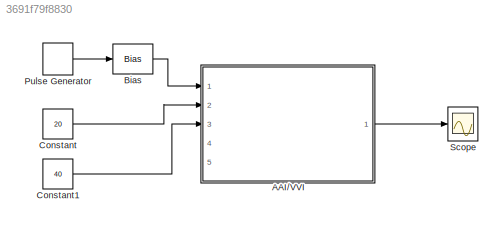
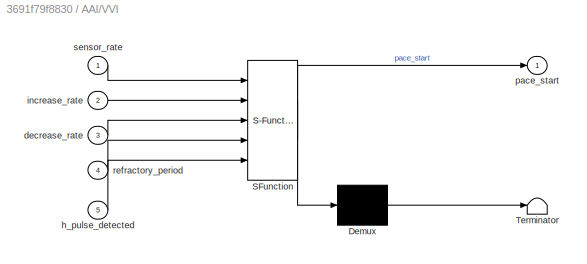
MODEL slx_3691f79f8830
KIND model
CONFIG AbsTol = auto
CONFIG EnableMultiTasking = on
CONFIG FixedStep = 1e-3
CONFIG MaxStep = auto
CONFIG MinStep = auto
CONFIG RelTol = 1e-3
CONFIG SampleTimeConstraint = Unconstrained
CONFIG Solver = FixedStepAuto
CONFIG SolverName = FixedStepAuto
CONFIG StartTime = 0.0
CONFIG StopTime = 16
BLOCK [SubSystem] AAI//VVI
  ErrorFcn = Stateflow.Translate.translate
  PermitHierarchicalResolution = ExplicitOnly
  Ports = [5, 1]
  RequestExecContextInheritance = off
  SFBlockType = Chart
  TreatAsAtomicUnit = on
BLOCK [Demux] AAI//VVI/ Demux 
  Outputs = 1
  Ports = [1, 1]
BLOCK [S-Function] AAI//VVI/ SFunction 
  EnableBusSupport = on
  FunctionName = sf_sfun
  PortCounts = [5 2]
  Ports = [5, 2]
  SFcnIsStateOwnerBlock = off
  SFunctionDeploymentMode = off
  Tag = Stateflow S-Function 3
BLOCK [Terminator] AAI//VVI/ Terminator 
BLOCK [Inport] AAI//VVI/decrease_rate
  Port = 3
BLOCK [Inport] AAI//VVI/h_pulse_detected
  Port = 5
BLOCK [Inport] AAI//VVI/increase_rate
  Port = 2
BLOCK [Outport] AAI//VVI/pace_start
BLOCK [Inport] AAI//VVI/refractory_period
  Port = 4
BLOCK [Inport] AAI//VVI/sensor_rate
BLOCK [Bias] Bias
  Bias = 60
  SaturateOnIntegerOverflow = off
BLOCK [Constant] Constant
  Value = 20
BLOCK [Constant] Constant1
  Value = 40
BLOCK [DiscretePulseGenerator] Pulse Generator
  Amplitude = 60
  Period = 16
  Ports = [0, 1]
  PulseType = Time based
  PulseWidth = 50
BLOCK [Scope] Scope
  Floating = off
  NumInputPorts = 1
  Ports = [1]
  ScopeSpecificationString = Simulink.scopes.TimeScopeBlockCfg('CurrentConfiguration', extmgr.ConfigurationSet(extmgr.Configuration('Core','General UI',true),extmgr.Configuration('Core','Source UI',true),extmgr.Configuration('Sources','WiredSimulink',true),extmgr.Configuration('Visuals','Time Domain',true,'SerializedDisplays',{struct('MinYLimReal','-0.125','MaxYLimReal','1.125','YLabelReal','','MinYLimMag','0.00000','MaxYLimM...<+1343ch>
LINE AAI//VVI:1 -> Scope:1
LINE Bias:1 -> AAI//VVI:1
LINE Constant1:1 -> AAI//VVI:3
LINE Constant:1 -> AAI//VVI:2
LINE Pulse Generator:1 -> Bias:1
CHART AAI//VVI states=4 transitions=20
  STATE_LABEL 'INITIAL\nentry:\ncurrent_LRL = sensor_rate;\nexit:\nt = elapsed(sec);'
  STATE_LABEL 'SENSE\nexit:\nt = t + elapsed(sec);'
  STATE_LABEL 'WAIT\nexit:\nt = elapsed(sec)'
  STATE_LABEL 'PACE\nentry:\npace_start = true;\non after(1, msec):\npace_start = false;\nexit:\nt = t + elapsed(sec);'
CHART  states=0 transitions=0
